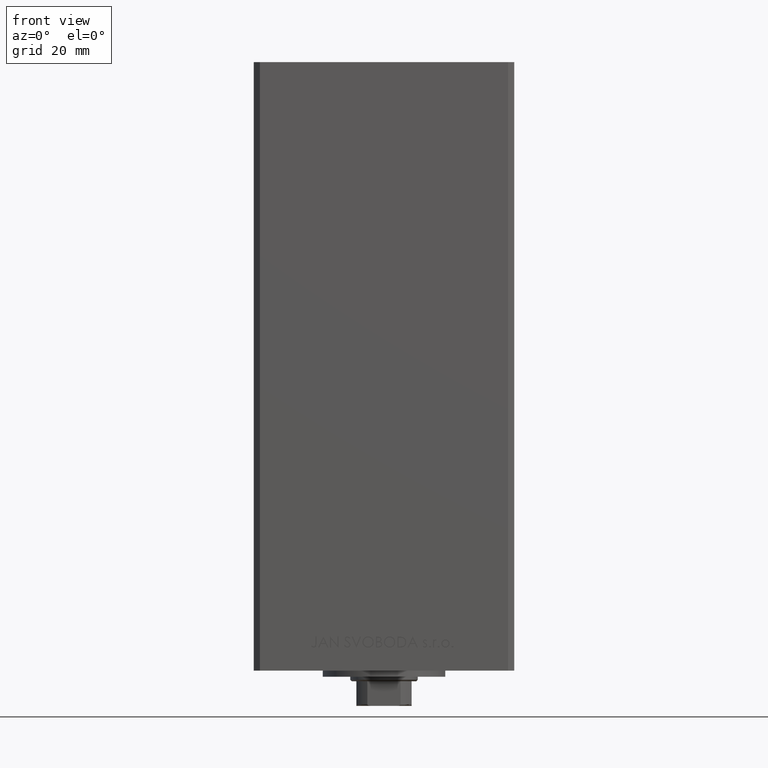
[diagram: clean part render]
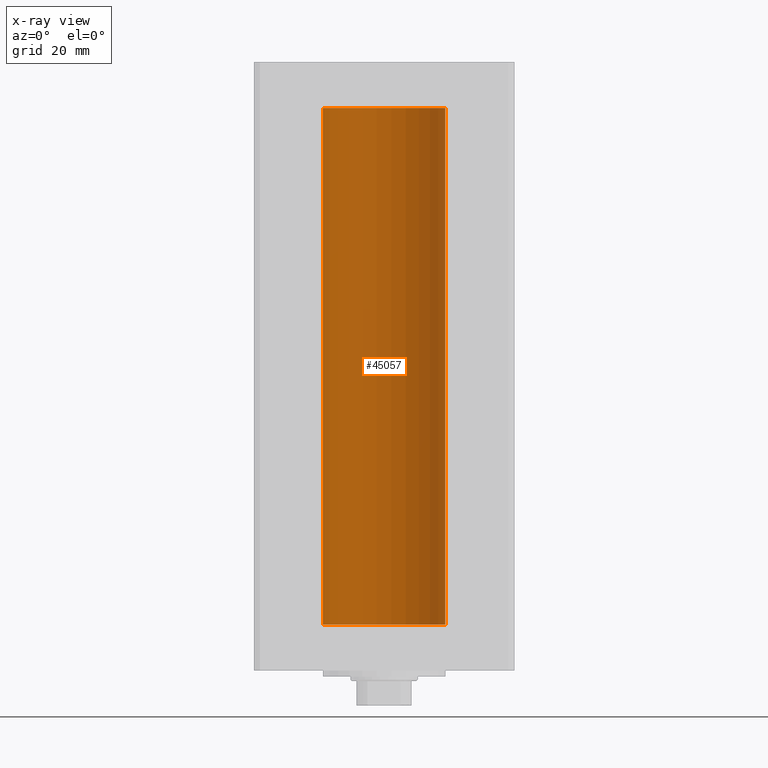
[diagram: x-ray — body ghosted, one internal face saturated and labeled with its STEP entity id]
A machine part, front view, then the same camera in x-ray: the body is ghosted and one INTERNAL B-rep face — a face not visible from any outside direction — is saturated and labeled: STEP entity #45057.
In plain terms, the highlighted cylindrical surface (partial cylindrical patch) has radius 20 mm, axis along (-0, -0, -1).
Its self-contained STEP definition (entity closure, byte-faithful):
#4468 = ORIENTED_EDGE ( 'NONE', *, *, #37320, .F. ) ;
#4818 = VERTEX_POINT ( 'NONE', #25224 ) ;
#5127 = CIRCLE ( 'NONE', #21736, 20.00000000000000000 ) ;
#5599 = DIRECTION ( 'NONE',  ( -0.000000000000000000, -0.000000000000000000, -1.000000000000000000 ) ) ;
#8413 = CIRCLE ( 'NONE', #43241, 20.00000000000000000 ) ;
#10283 = CARTESIAN_POINT ( 'NONE',  ( 0.000000000000000000, 0.000000000000000000, 168.5000000000000000 ) ) ;
#14363 = DIRECTION ( 'NONE',  ( -0.000000000000000000, -0.000000000000000000, -1.000000000000000000 ) ) ;
#15083 = LINE ( 'NONE', #37131, #26376 ) ;
#17125 = VERTEX_POINT ( 'NONE', #33182 ) ;
#17830 = DIRECTION ( 'NONE',  ( 1.000000000000000000, 0.000000000000000000, 0.000000000000000000 ) ) ;
#18094 = VERTEX_POINT ( 'NONE', #42276 ) ;
#18755 = AXIS2_PLACEMENT_3D ( 'NONE', #36290, #5599, #39998 ) ;
#21126 = EDGE_CURVE ( 'NONE', #4818, #18094, #8413, .T. ) ;
#21194 = FACE_OUTER_BOUND ( 'NONE', #28805, .T. ) ;
#21736 = AXIS2_PLACEMENT_3D ( 'NONE', #25259, #40355, #17830 ) ;
#23543 = ORIENTED_EDGE ( 'NONE', *, *, #35341, .F. ) ;
#23649 = CARTESIAN_POINT ( 'NONE',  ( -20.00000000000000000, 0.000000000000000000, 168.5000000000000000 ) ) ;
#24474 = EDGE_CURVE ( 'NONE', #18094, #27386, #27622, .T. ) ;
#25224 = CARTESIAN_POINT ( 'NONE',  ( 20.00000000000000000, 2.449293598294706513E-15, 168.5000000000000000 ) ) ;
#25259 = CARTESIAN_POINT ( 'NONE',  ( 0.000000000000000000, 0.000000000000000000, 0.000000000000000000 ) ) ;
#25863 = DIRECTION ( 'NONE',  ( 1.000000000000000000, 0.000000000000000000, 0.000000000000000000 ) ) ;
#26376 = VECTOR ( 'NONE', #14363, 1000.000000000000000 ) ;
#27386 = VERTEX_POINT ( 'NONE', #35947 ) ;
#27622 = LINE ( 'NONE', #23649, #45683 ) ;
#27636 = CYLINDRICAL_SURFACE ( 'NONE', #18755, 20.00000000000000000 ) ;
#28805 = EDGE_LOOP ( 'NONE', ( #23543, #41177, #31523, #4468 ) ) ;
#31063 = DIRECTION ( 'NONE',  ( -0.000000000000000000, -0.000000000000000000, -1.000000000000000000 ) ) ;
#31523 = ORIENTED_EDGE ( 'NONE', *, *, #24474, .T. ) ;
#33182 = CARTESIAN_POINT ( 'NONE',  ( 20.00000000000000000, 2.449293598294706513E-15, 0.000000000000000000 ) ) ;
#35341 = EDGE_CURVE ( 'NONE', #4818, #17125, #15083, .T. ) ;
#35947 = CARTESIAN_POINT ( 'NONE',  ( -20.00000000000000000, 0.000000000000000000, 0.000000000000000000 ) ) ;
#36290 = CARTESIAN_POINT ( 'NONE',  ( 0.000000000000000000, 0.000000000000000000, 168.5000000000000000 ) ) ;
#37131 = CARTESIAN_POINT ( 'NONE',  ( 20.00000000000000000, 2.449293598294706513E-15, 168.5000000000000000 ) ) ;
#37320 = EDGE_CURVE ( 'NONE', #17125, #27386, #5127, .T. ) ;
#39998 = DIRECTION ( 'NONE',  ( -1.000000000000000000, 0.000000000000000000, 0.000000000000000000 ) ) ;
#40355 = DIRECTION ( 'NONE',  ( -0.000000000000000000, 0.000000000000000000, 1.000000000000000000 ) ) ;
#40715 = DIRECTION ( 'NONE',  ( -0.000000000000000000, 0.000000000000000000, 1.000000000000000000 ) ) ;
#41177 = ORIENTED_EDGE ( 'NONE', *, *, #21126, .T. ) ;
#42276 = CARTESIAN_POINT ( 'NONE',  ( -20.00000000000000000, 0.000000000000000000, 168.5000000000000000 ) ) ;
#43241 = AXIS2_PLACEMENT_3D ( 'NONE', #10283, #40715, #25863 ) ;
#45057 = ADVANCED_FACE ( 'NONE', ( #21194 ), #27636, .F. ) ;
#45683 = VECTOR ( 'NONE', #31063, 1000.000000000000000 ) ;